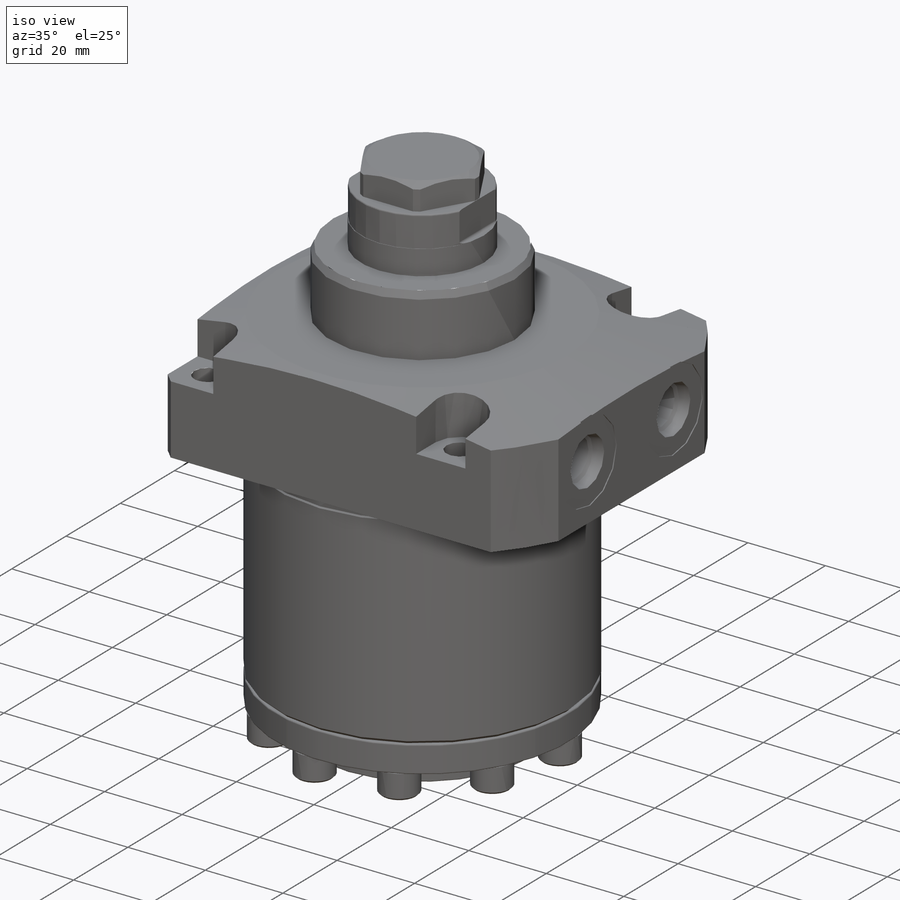
[diagram: iso view]
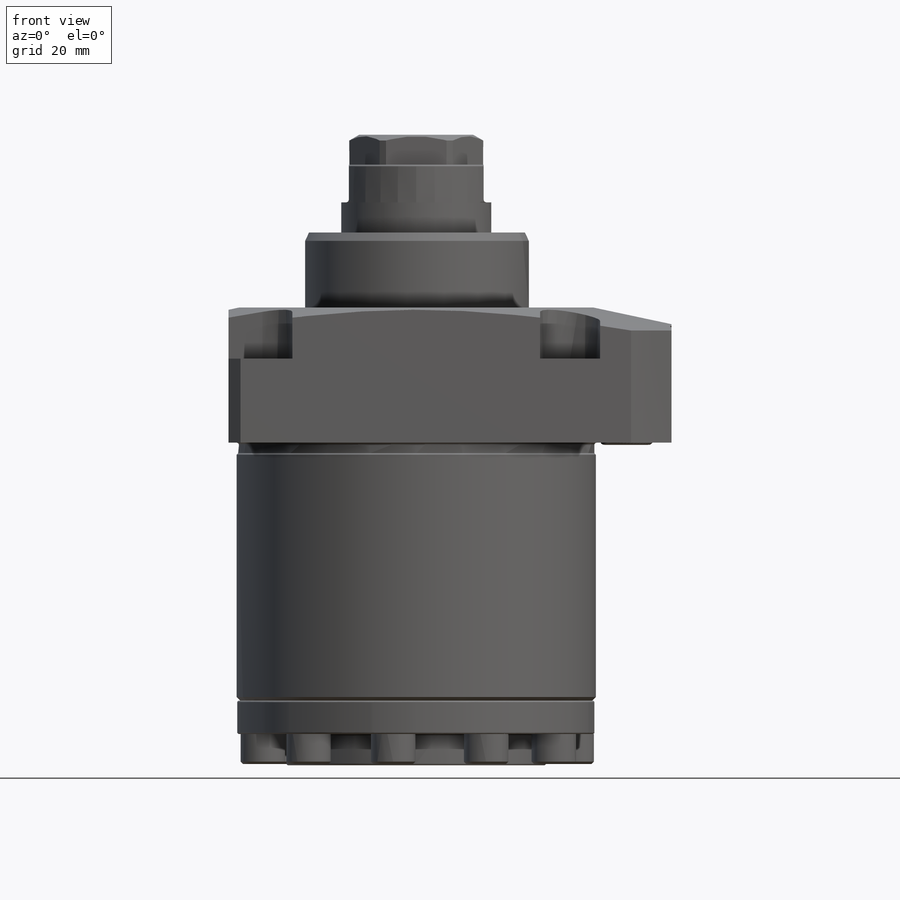
[diagram: front view]
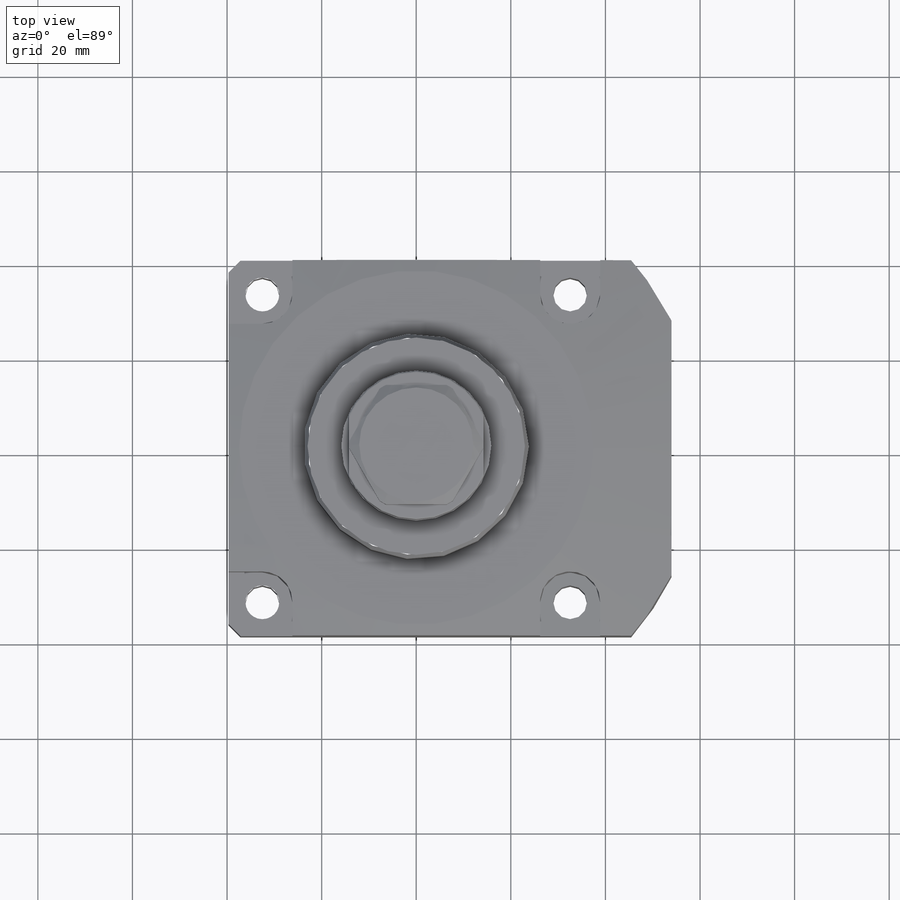
[diagram: top view]
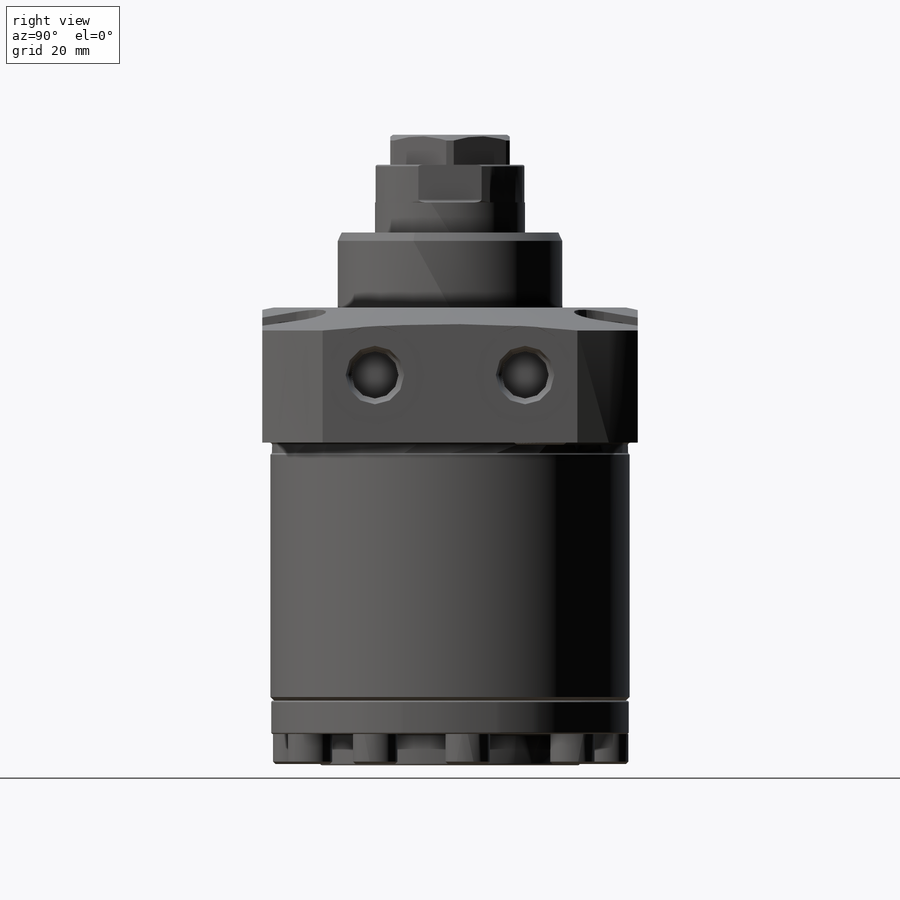
[diagram: right view]
SOLIDWORKS PART (.sldprt)
format: sldprt  version: not decoded by parser v0  size: 694,784 bytes
history: native  units: mm
features: sketch x20, revolve x6, cut_extrude x6, cut_revolve x4, chamfer x3, pattern_circular x2, plane x2, material x1, hole x1, mirror x1, fillet x1, extrude x1 + 2 further entries (+13 scaffold rows collapsed)
feature tree (63):
  scaffold x13  (default folders/planes/origin — collapsed)
  material  "Alloy Steel"
  sketch  "Sketch1"  dims[D1=28.575mm D2=120.65mm D3=83.1088mm]
  revolve  "Revolve1"  Angle=360deg
  sketch  "Sketch2"  dims[c1.D1=75.946mm c1.D2=~0.449013mm c2.D2=45.0deg c2.D3=75.311mm c2.D4=2.2225mm c2.D5=54.5338mm c2.D6=127.0mm]
  cut_revolve  "Cut-Revolve1"  Angle=360deg
  sketch  "Sketch4"  dims[c1.D1=79.375mm c1.D2=28.575mm c1.D3=93.6752mm c2.D2=53.975mm]
  cut_extrude  "Cut-Extrude26"  [1 undecoded]
  sketch  "Sketch5"  dims[c1.D1=~70.576302mm c2.D1=12.0deg c2.D2=74.93mm c2.D3=76.2mm]
  cut_revolve  "Cut-Revolve2"  Angle=360deg
  hole  "Hole1"  Diameter=7.1374mm Depth=28.575mm
  sketch  "Sketch64"  dims[D1=32.5374mm D2=32.5374mm]
  sketch  "Sketch63"  dims[Diameter=7.1374mm Depth=28.575mm]
  pattern_circular  "CirPattern1"  Count=4 Angle=360deg
  sketch  "Sketch9"  dims[D1=6.35mm D2=6.35mm]
  cut_extrude  "Cut-Extrude27"  Depth=17.78mm
  plane  "Plane63"  Offset=15.875mm
  sketch  "S2D0007"  dims[c1.D1=0.254mm c1.D2=14.3002mm c1.D3=9.9568mm c1.D4=14.986mm c1.D5=20.955mm c1.D6=~0.938906mm c2.D6=45.0deg c2.D7=2.5527mm c3.D7=12.0deg c3.D8=12.3698mm c3.D9=2.5527mm]
  cut_revolve  "Cut-Revolve3"  Angle=360deg
  mirror  "Mirror1"
  plane  "Plane64"  Offset=19.05mm
  sketch  "S2D0013"  dims[D1=12.7mm D2=2.032mm D3=44.45mm D4=11.1506mm D5=6.7564mm D6=1.3208mm D7=2.4892mm]
  cut_revolve  "Cut-Revolve4"  Angle=360deg
  sketch  "Sketch22"  dims[c1.D1=47.6123mm c1.D2=~1.961806mm c2.D2=25.0deg c2.D3=15.875mm c2.D4=1.778mm c3.D3=44.45mm]
  revolve  "Revolve4"  Angle=360deg
  sketch  "S2D0005"  dims[c1.D6=0.381mm c1.D1=28.321mm c1.D2=65.1002mm c1.D3=~2.68364mm c2.D3=30.0deg c3.D3=~5.200438mm c4.D3=30.0deg c4.D4=24.13mm c4.D5=6.35mm c4.D7=31.4706mm c4.D8=31.7246mm c4.D9=7.9502mm]
  revolve  "Revolve2"  Angle=360deg
  sketch  "Sketch66"  dims[D1=25.273mm]
  cut_extrude  "Cut-Extrude28"  [1 undecoded]
  sketch  "Sketch28"  dims[D3=0.635mm D1=4.572mm D2=28.4988mm]
  cut_extrude  "Cut-Extrude4"  Depth=25.4mm
  sketch  "Sketch29"  dims[D5=~1.409266mm D1=1.651mm D2=6.477mm D3=1.2954mm D4=5.6896mm]
  revolve  "Revolve3"  Angle=360deg
  sketch  "Sketch31"  dims[D1=2.0mm]
  cut_extrude  "Cut-Extrude6"  Depth=0.9906mm
  sketch  "Sketch32"  dims[D1=1.778mm D2=0.4318mm D3=9.4234mm]
  revolve  "Revolve6"  Angle=360deg
  sketch  "Sketch67"  dims[D1=47.117mm]
  "Sketch-Pattern1"
  "Sketch-Pattern2"
  chamfer  "Chamfer1"  Distance=0.762mm Angle=45deg
  chamfer  "Chamfer2"  Distance=2.54mm Angle=45deg
  fillet  "Fillet3"  Radius=0.508mm
  sketch  "Sketch69"  dims[D5=0.381mm D1=13.6652mm D2=54.864mm D3=7.0612mm D4=75.692mm]
  revolve  "Revolve9"  Angle=360deg
  sketch  "Sketch70"  dims[c1.D1=66.167mm c1.D3=9.398mm c1.D2=~46.801299mm c2.D2=6.5deg]
  extrude  "Extrude7"  Depth=6.35mm
  sketch  "Sketch71"  dims[D1=4.7625mm]
  cut_extrude  "Cut-Extrude30"  Depth=3.048mm
  chamfer  "Chamfer3"  Distance=0.508mm Angle=45deg
  pattern_circular  "CirPattern4"  Count=10 Angle=35deg
decode coverage: 42 of 45 modeling features carry decoded parameters; 2 rows unclassified (native names shown)
note: ~ marks probable driven/reference dimensions
note: 2 parameter values undecoded
note: suppression state not decoded; provenance and decode notes live in map.json
